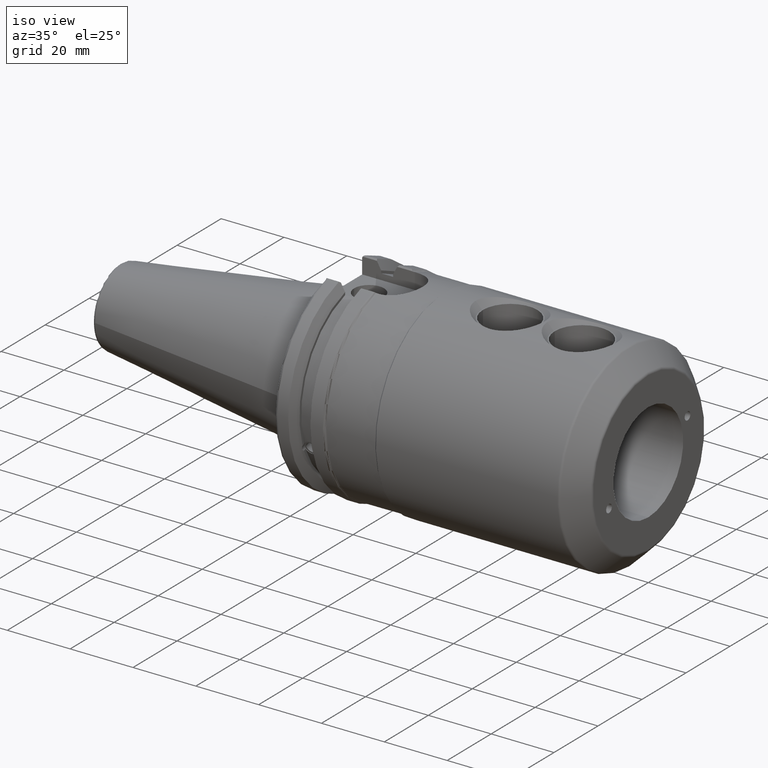
[diagram: clean part render]
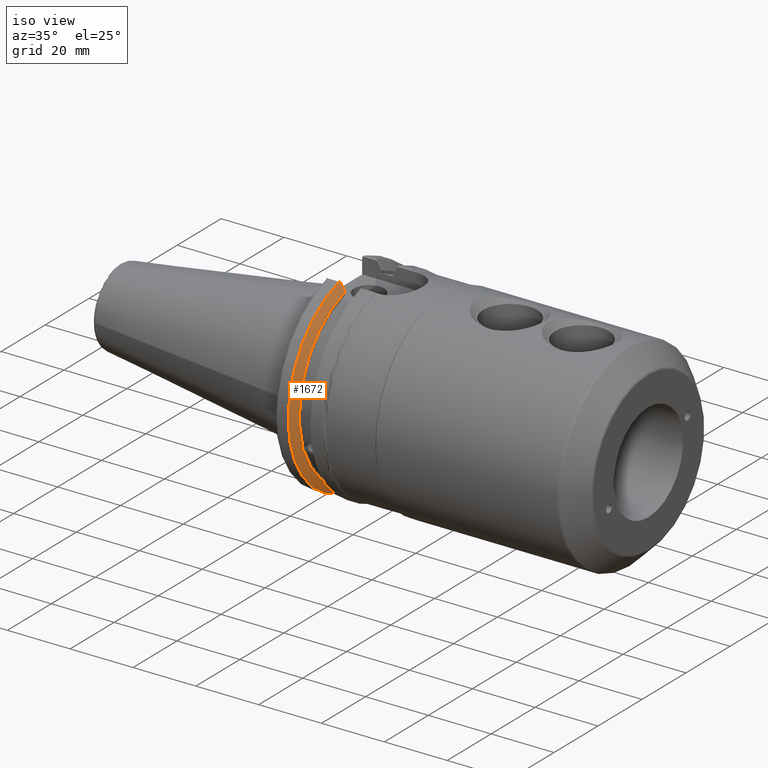
[diagram: same view with one face highlighted and labeled with its STEP entity id]
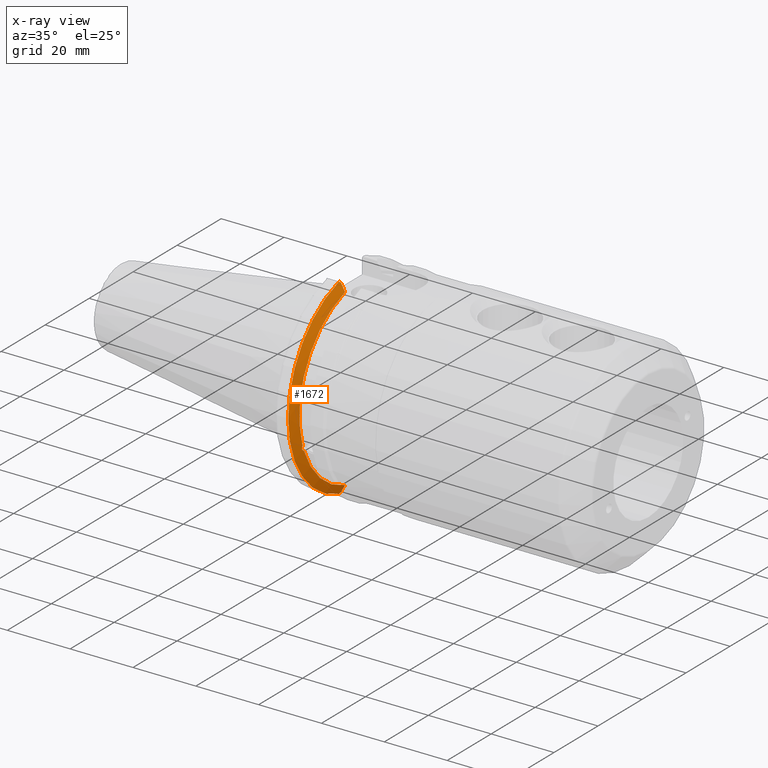
[diagram: x-ray of the same camera — body ghosted, the highlighted face saturated]
A machine part, iso view. The second image highlights one B-rep face of the part: STEP entity #1672.
The next image is the same camera in x-ray: the body ghosted, the highlighted face saturated — about 1% of this face is hidden behind the body in this view.
In plain terms, the highlighted conical surface has half-angle 60 deg.
Its self-contained STEP definition (entity closure, byte-faithful):
#23=(
BOUNDED_CURVE()
B_SPLINE_CURVE(2,(#3143,#3144,#3145),.UNSPECIFIED.,.F.,.F.)
B_SPLINE_CURVE_WITH_KNOTS((3,3),(0.,0.276549142797088),.UNSPECIFIED.)
CURVE()
GEOMETRIC_REPRESENTATION_ITEM()
RATIONAL_B_SPLINE_CURVE((1.,1.00095203903867,1.00031614444995))
REPRESENTATION_ITEM('')
);
#26=(
BOUNDED_CURVE()
B_SPLINE_CURVE(2,(#3263,#3264,#3265),.UNSPECIFIED.,.F.,.F.)
B_SPLINE_CURVE_WITH_KNOTS((3,3),(0.,0.0639048713675838),.UNSPECIFIED.)
CURVE()
GEOMETRIC_REPRESENTATION_ITEM()
RATIONAL_B_SPLINE_CURVE((1.,1.00028444218292,1.00047644010588))
REPRESENTATION_ITEM('')
);
#27=(
BOUNDED_CURVE()
B_SPLINE_CURVE(2,(#3273,#3274,#3275),.UNSPECIFIED.,.F.,.F.)
B_SPLINE_CURVE_WITH_KNOTS((3,3),(0.329353533631213,0.393258405001024),
 .UNSPECIFIED.)
CURVE()
GEOMETRIC_REPRESENTATION_ITEM()
RATIONAL_B_SPLINE_CURVE((1.00047644010576,1.00028444218285,1.))
REPRESENTATION_ITEM('')
);
#29=(
BOUNDED_CURVE()
B_SPLINE_CURVE(2,(#3321,#3322,#3323),.UNSPECIFIED.,.F.,.F.)
B_SPLINE_CURVE_WITH_KNOTS((3,3),(0.0550586467393311,0.331607789535851),
 .UNSPECIFIED.)
CURVE()
GEOMETRIC_REPRESENTATION_ITEM()
RATIONAL_B_SPLINE_CURVE((1.00031614445049,1.00095203904028,1.))
REPRESENTATION_ITEM('')
);
#123=B_SPLINE_CURVE_WITH_KNOTS('',3,(#2857,#2858,#2859,#2860,#2861,#2862,
#2863,#2864,#2865,#2866,#2867,#2868,#2869,#2870),.UNSPECIFIED.,.F.,.F.,
(4,2,2,2,2,2,4),(0.451995700189025,0.464547828547662,0.504528771685168,
0.544509714822673,0.584490657960178,0.624471601097683,0.637023729456319),
 .UNSPECIFIED.);
#279=FACE_OUTER_BOUND('',#394,.T.);
#394=EDGE_LOOP('',(#1523,#1524,#1525,#1526,#1527,#1528,#1529,#1530));
#623=CIRCLE('',#1791,28.9593772964944);
#646=CIRCLE('',#1849,31.75);
#658=CIRCLE('',#1880,28.9593772964944);
#731=VERTEX_POINT('',#2854);
#732=VERTEX_POINT('',#2856);
#749=VERTEX_POINT('',#2949);
#787=VERTEX_POINT('',#3140);
#788=VERTEX_POINT('',#3142);
#813=VERTEX_POINT('',#3261);
#814=VERTEX_POINT('',#3267);
#815=VERTEX_POINT('',#3271);
#919=EDGE_CURVE('',#732,#731,#123,.T.);
#943=EDGE_CURVE('',#732,#749,#623,.T.);
#999=EDGE_CURVE('',#788,#787,#23,.T.);
#1037=EDGE_CURVE('',#813,#787,#26,.T.);
#1039=EDGE_CURVE('',#813,#814,#646,.T.);
#1041=EDGE_CURVE('',#815,#814,#27,.T.);
#1056=EDGE_CURVE('',#815,#749,#29,.T.);
#1068=EDGE_CURVE('',#788,#731,#658,.T.);
#1523=ORIENTED_EDGE('',*,*,#919,.T.);
#1524=ORIENTED_EDGE('',*,*,#1068,.F.);
#1525=ORIENTED_EDGE('',*,*,#999,.T.);
#1526=ORIENTED_EDGE('',*,*,#1037,.F.);
#1527=ORIENTED_EDGE('',*,*,#1039,.T.);
#1528=ORIENTED_EDGE('',*,*,#1041,.F.);
#1529=ORIENTED_EDGE('',*,*,#1056,.T.);
#1530=ORIENTED_EDGE('',*,*,#943,.F.);
#1587=CONICAL_SURFACE('',#1879,30.3546886482472,1.0471975511966);
#1672=ADVANCED_FACE('',(#279),#1587,.T.);
#1791=AXIS2_PLACEMENT_3D('',#2950,#2103,#2104);
#1849=AXIS2_PLACEMENT_3D('',#3269,#2260,#2261);
#1879=AXIS2_PLACEMENT_3D('',#3351,#2331,#2332);
#1880=AXIS2_PLACEMENT_3D('',#3352,#2333,#2334);
#2103=DIRECTION('center_axis',(1.,0.,0.));
#2104=DIRECTION('ref_axis',(0.,0.,-1.));
#2260=DIRECTION('center_axis',(1.,0.,0.));
#2261=DIRECTION('ref_axis',(0.,0.,-1.));
#2331=DIRECTION('center_axis',(-1.,0.,0.));
#2332=DIRECTION('ref_axis',(0.,-1.,-1.22464679914735E-16));
#2333=DIRECTION('center_axis',(1.,0.,0.));
#2334=DIRECTION('ref_axis',(0.,0.,-1.));
#2854=CARTESIAN_POINT('',(9.2191,-27.4956274489925,-9.09043478536247));
#2856=CARTESIAN_POINT('',(9.21909999999999,-26.9060914640648,-10.7101715919071));
#2857=CARTESIAN_POINT('Ctrl Pts',(9.21909999999999,-26.9060914640648,-10.7101715919071));
#2858=CARTESIAN_POINT('Ctrl Pts',(9.20497959280038,-26.9406927482839,-10.6893765730703));
#2859=CARTESIAN_POINT('Ctrl Pts',(9.19150701821433,-26.9744191989197,-10.6676007180673));
#2860=CARTESIAN_POINT('Ctrl Pts',(9.13811855884095,-27.1113422433188,-10.5723885976054));
#2861=CARTESIAN_POINT('Ctrl Pts',(9.09998029158246,-27.2180531796526,-10.4801333026531));
#2862=CARTESIAN_POINT('Ctrl Pts',(9.04778935539424,-27.3968610665578,-10.2639559818059));
#2863=CARTESIAN_POINT('Ctrl Pts',(9.0341,-27.4684373304961,-10.139516340139));
#2864=CARTESIAN_POINT('Ctrl Pts',(9.0341,-27.559599249844,-9.8890510252165));
#2865=CARTESIAN_POINT('Ctrl Pts',(9.04778935539424,-27.5847569104121,-9.74771639360671));
#2866=CARTESIAN_POINT('Ctrl Pts',(9.09998029158246,-27.5867382255984,-9.46717946402648));
#2867=CARTESIAN_POINT('Ctrl Pts',(9.13811855884095,-27.5642934663232,-9.32791534028655));
#2868=CARTESIAN_POINT('Ctrl Pts',(9.19150701821433,-27.5206055003512,-9.16696618806878));
#2869=CARTESIAN_POINT('Ctrl Pts',(9.20497959280038,-27.5087667900418,-9.12860597076219));
#2870=CARTESIAN_POINT('Ctrl Pts',(9.21909999999999,-27.4956274489925,-9.09043478536247));
#2949=CARTESIAN_POINT('',(9.2191,-8.19,-27.7771386827498));
#2950=CARTESIAN_POINT('Origin',(9.2191,0.,0.));
#3140=CARTESIAN_POINT('',(7.88668530351255,-8.19,30.1755016258903));
#3142=CARTESIAN_POINT('',(9.2191,-8.19,27.7771386827498));
#3143=CARTESIAN_POINT('Ctrl Pts',(9.2191,-8.19,27.7771386827498));
#3144=CARTESIAN_POINT('Ctrl Pts',(8.58046356153227,-8.19,28.9303689539555));
#3145=CARTESIAN_POINT('Ctrl Pts',(7.88668530351255,-8.19,30.1755016258903));
#3261=CARTESIAN_POINT('',(7.60793323092436,-8.67204822802685,30.5427254764662));
#3263=CARTESIAN_POINT('Ctrl Pts',(7.60793323092436,-8.67204822802685,30.5427254764662));
#3264=CARTESIAN_POINT('Ctrl Pts',(7.74899148121628,-8.42917748262643,30.3577067892629));
#3265=CARTESIAN_POINT('Ctrl Pts',(7.88668530351255,-8.19,30.1755016258903));
#3267=CARTESIAN_POINT('',(7.60793323092436,-8.67204822802685,-30.5427254764662));
#3269=CARTESIAN_POINT('Origin',(7.60793323092436,0.,0.));
#3271=CARTESIAN_POINT('',(7.88668530351256,-8.19,-30.1755016258903));
#3273=CARTESIAN_POINT('Ctrl Pts',(7.88668530351256,-8.19,-30.1755016258903));
#3274=CARTESIAN_POINT('Ctrl Pts',(7.7489914812116,-8.42917748263465,-30.3577067892692));
#3275=CARTESIAN_POINT('Ctrl Pts',(7.60793323092436,-8.67204822802685,-30.5427254764662));
#3321=CARTESIAN_POINT('Ctrl Pts',(7.88668530351256,-8.19,-30.1755016258903));
#3322=CARTESIAN_POINT('Ctrl Pts',(8.5804635615239,-8.19,-28.9303689539705));
#3323=CARTESIAN_POINT('Ctrl Pts',(9.2191,-8.19,-27.7771386827498));
#3351=CARTESIAN_POINT('Origin',(8.41351661546217,0.,0.));
#3352=CARTESIAN_POINT('Origin',(9.2191,0.,0.));